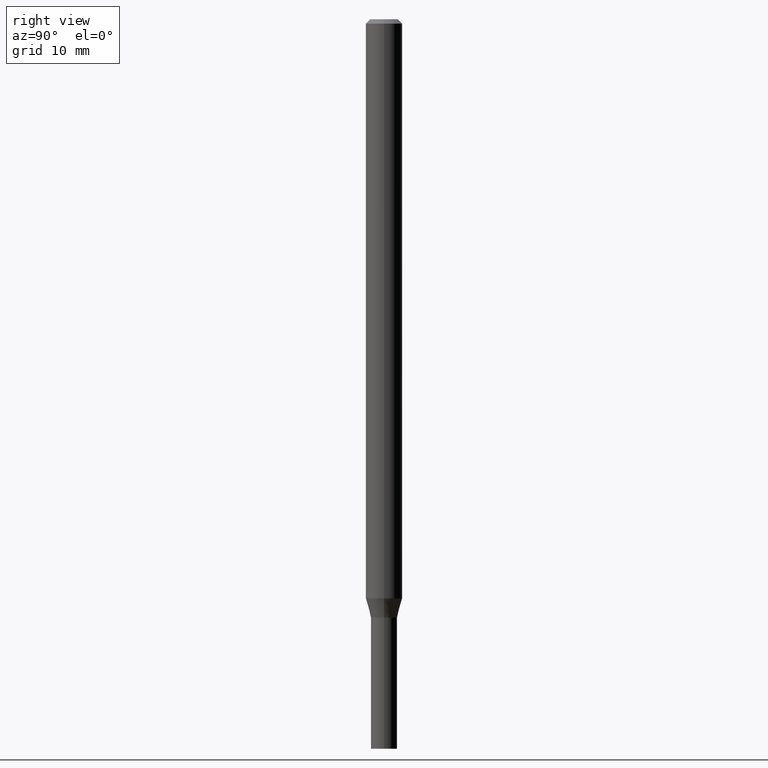
[diagram: clean part render]
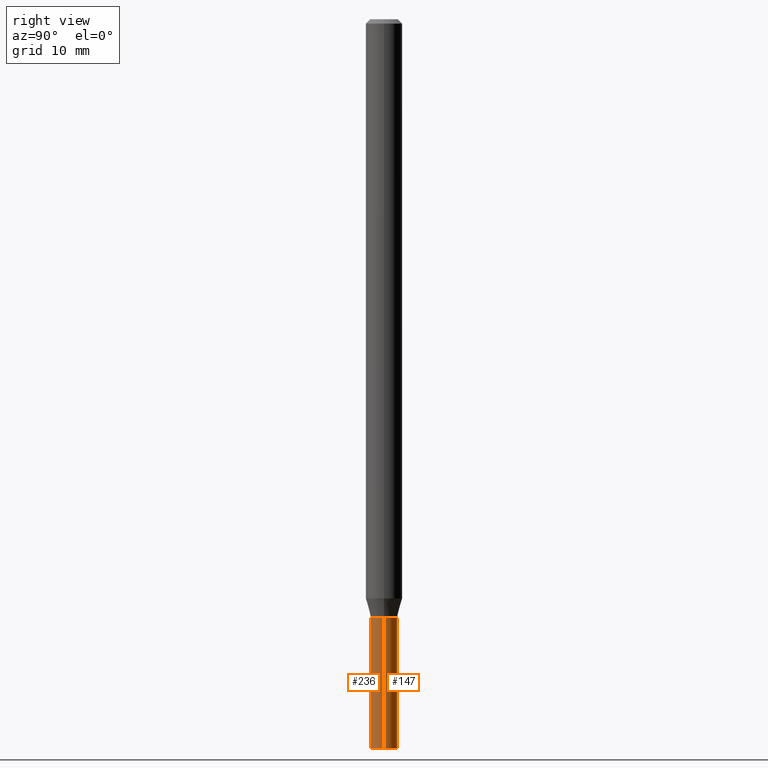
[diagram: same view with one multi-face feature highlighted, each face labeled with its STEP entity id]
A machine part, right view. The highlighted faces form ONE feature: a constant-radius fillet chain: 2 tangent blend faces with common blend radius 1.143 mm. The faces share edges in the B-rep.
Their STEP definitions:
[1] entity #147 (Cylinder):
#6 = CARTESIAN_POINT ( 'NONE',  ( 0.04499999999999999833, -3.142333204958819823E-16, 2.194279549108170967E-30 ) ) ;
#8 = CARTESIAN_POINT ( 'NONE',  ( -0.04499999999999999833, 3.197442310920450718E-16, -2.213520790614707560E-30 ) ) ;
#38 = DIRECTION ( 'NONE',  ( -2.445468806185136597E-29, 3.491481338843145583E-15, 1.000000000000000000 ) ) ;
#43 = DIRECTION ( 'NONE',  ( -2.445468806185136877E-29, 3.491481338843145188E-15, 1.000000000000000000 ) ) ;
#52 = EDGE_CURVE ( 'NONE', #274, #342, #275, .T. ) ;
#60 = EDGE_CURVE ( 'NONE', #135, #165, #343, .T. ) ;
#61 = AXIS2_PLACEMENT_3D ( 'NONE', #101, #139, #465 ) ;
#62 = VECTOR ( 'NONE', #43, 39.37007874015748143 ) ;
#81 = DIRECTION ( 'NONE',  ( 1.000000000000000000, -6.982962677686266711E-15, 4.876176775795935793E-29 ) ) ;
#98 = AXIS2_PLACEMENT_3D ( 'NONE', #112, #38, #81 ) ;
#101 = CARTESIAN_POINT ( 'NONE',  ( 6.113672015462842613E-29, -8.728703347107864943E-15, -2.500000000000000000 ) ) ;
#112 = CARTESIAN_POINT ( 'NONE',  ( 0.000000000000000000, 0.000000000000000000, 0.000000000000000000 ) ) ;
#135 = VERTEX_POINT ( 'NONE', #218 ) ;
#139 = DIRECTION ( 'NONE',  ( -2.445468806185136597E-29, 3.491481338843145583E-15, 1.000000000000000000 ) ) ;
#147 = ADVANCED_FACE ( 'NONE', ( #221 ), #290, .T. ) ;
#157 = LINE ( 'NONE', #8, #62 ) ;
#160 = LINE ( 'NONE', #6, #161 ) ;
#161 = VECTOR ( 'NONE', #302, 39.37007874015748143 ) ;
#165 = VERTEX_POINT ( 'NONE', #394 ) ;
#180 = ORIENTED_EDGE ( 'NONE', *, *, #418, .T. ) ;
#184 = AXIS2_PLACEMENT_3D ( 'NONE', #279, #319, #282 ) ;
#208 = ORIENTED_EDGE ( 'NONE', *, *, #217, .F. ) ;
#217 = EDGE_CURVE ( 'NONE', #274, #135, #160, .T. ) ;
#218 = CARTESIAN_POINT ( 'NONE',  ( 0.04499999999999999833, -7.471770065124331886E-15, -2.050000000000000266 ) ) ;
#221 = FACE_OUTER_BOUND ( 'NONE', #346, .T. ) ;
#274 = VERTEX_POINT ( 'NONE', #414 ) ;
#275 = CIRCLE ( 'NONE', #61, 0.04499999999999999833 ) ;
#279 = CARTESIAN_POINT ( 'NONE',  ( 5.013211052679530360E-29, -7.157536744628448622E-15, -2.050000000000000266 ) ) ;
#282 = DIRECTION ( 'NONE',  ( 1.000000000000000000, -6.982962677686269077E-15, 0.000000000000000000 ) ) ;
#290 = CYLINDRICAL_SURFACE ( 'NONE', #98, 0.04499999999999999833 ) ;
#297 = CARTESIAN_POINT ( 'NONE',  ( -0.04499999999999999833, -7.623375814776112203E-15, -2.500000000000000000 ) ) ;
#302 = DIRECTION ( 'NONE',  ( -2.445468806185136877E-29, 3.491481338843145188E-15, 1.000000000000000000 ) ) ;
#319 = DIRECTION ( 'NONE',  ( -2.445468806185136597E-29, 3.491481338843145583E-15, 1.000000000000000000 ) ) ;
#331 = ORIENTED_EDGE ( 'NONE', *, *, #52, .T. ) ;
#342 = VERTEX_POINT ( 'NONE', #297 ) ;
#343 = CIRCLE ( 'NONE', #184, 0.04499999999999999833 ) ;
#346 = EDGE_LOOP ( 'NONE', ( #331, #180, #426, #208 ) ) ;
#394 = CARTESIAN_POINT ( 'NONE',  ( -0.04499999999999999833, -7.623375814776112203E-15, -2.050000000000000266 ) ) ;
#414 = CARTESIAN_POINT ( 'NONE',  ( 0.04499999999999999833, -9.042936667603745051E-15, -2.500000000000000000 ) ) ;
#418 = EDGE_CURVE ( 'NONE', #342, #165, #157, .T. ) ;
#426 = ORIENTED_EDGE ( 'NONE', *, *, #60, .F. ) ;
#465 = DIRECTION ( 'NONE',  ( 1.000000000000000000, -6.982962677686246989E-15, 0.000000000000000000 ) ) ;
[2] entity #236 (Cylinder):
#6 = CARTESIAN_POINT ( 'NONE',  ( 0.04499999999999999833, -3.142333204958819823E-16, 2.194279549108170967E-30 ) ) ;
#8 = CARTESIAN_POINT ( 'NONE',  ( -0.04499999999999999833, 3.197442310920450718E-16, -2.213520790614707560E-30 ) ) ;
#32 = CIRCLE ( 'NONE', #293, 0.04499999999999999833 ) ;
#43 = DIRECTION ( 'NONE',  ( -2.445468806185136877E-29, 3.491481338843145188E-15, 1.000000000000000000 ) ) ;
#62 = VECTOR ( 'NONE', #43, 39.37007874015748143 ) ;
#83 = DIRECTION ( 'NONE',  ( 1.000000000000000000, -6.982962677686269077E-15, 0.000000000000000000 ) ) ;
#90 = EDGE_LOOP ( 'NONE', ( #162, #122, #457, #266 ) ) ;
#94 = EDGE_CURVE ( 'NONE', #342, #274, #251, .T. ) ;
#103 = DIRECTION ( 'NONE',  ( -2.445468806185136597E-29, 3.491481338843145583E-15, 1.000000000000000000 ) ) ;
#115 = DIRECTION ( 'NONE',  ( 1.000000000000000000, -6.982962677686266711E-15, 4.876176775795935793E-29 ) ) ;
#118 = CYLINDRICAL_SURFACE ( 'NONE', #193, 0.04499999999999999833 ) ;
#122 = ORIENTED_EDGE ( 'NONE', *, *, #94, .T. ) ;
#135 = VERTEX_POINT ( 'NONE', #218 ) ;
#151 = CARTESIAN_POINT ( 'NONE',  ( 0.000000000000000000, 0.000000000000000000, 0.000000000000000000 ) ) ;
#157 = LINE ( 'NONE', #8, #62 ) ;
#160 = LINE ( 'NONE', #6, #161 ) ;
#161 = VECTOR ( 'NONE', #302, 39.37007874015748143 ) ;
#162 = ORIENTED_EDGE ( 'NONE', *, *, #418, .F. ) ;
#165 = VERTEX_POINT ( 'NONE', #394 ) ;
#193 = AXIS2_PLACEMENT_3D ( 'NONE', #151, #405, #115 ) ;
#217 = EDGE_CURVE ( 'NONE', #274, #135, #160, .T. ) ;
#218 = CARTESIAN_POINT ( 'NONE',  ( 0.04499999999999999833, -7.471770065124331886E-15, -2.050000000000000266 ) ) ;
#236 = ADVANCED_FACE ( 'NONE', ( #434 ), #118, .T. ) ;
#251 = CIRCLE ( 'NONE', #410, 0.04499999999999999833 ) ;
#257 = EDGE_CURVE ( 'NONE', #165, #135, #32, .T. ) ;
#258 = CARTESIAN_POINT ( 'NONE',  ( 5.013211052679530360E-29, -7.157536744628448622E-15, -2.050000000000000266 ) ) ;
#266 = ORIENTED_EDGE ( 'NONE', *, *, #257, .F. ) ;
#274 = VERTEX_POINT ( 'NONE', #414 ) ;
#286 = DIRECTION ( 'NONE',  ( 1.000000000000000000, -6.982962677686246989E-15, 0.000000000000000000 ) ) ;
#293 = AXIS2_PLACEMENT_3D ( 'NONE', #258, #402, #83 ) ;
#297 = CARTESIAN_POINT ( 'NONE',  ( -0.04499999999999999833, -7.623375814776112203E-15, -2.500000000000000000 ) ) ;
#302 = DIRECTION ( 'NONE',  ( -2.445468806185136877E-29, 3.491481338843145188E-15, 1.000000000000000000 ) ) ;
#342 = VERTEX_POINT ( 'NONE', #297 ) ;
#394 = CARTESIAN_POINT ( 'NONE',  ( -0.04499999999999999833, -7.623375814776112203E-15, -2.050000000000000266 ) ) ;
#402 = DIRECTION ( 'NONE',  ( -2.445468806185136597E-29, 3.491481338843145583E-15, 1.000000000000000000 ) ) ;
#405 = DIRECTION ( 'NONE',  ( -2.445468806185136597E-29, 3.491481338843145583E-15, 1.000000000000000000 ) ) ;
#410 = AXIS2_PLACEMENT_3D ( 'NONE', #424, #103, #286 ) ;
#414 = CARTESIAN_POINT ( 'NONE',  ( 0.04499999999999999833, -9.042936667603745051E-15, -2.500000000000000000 ) ) ;
#418 = EDGE_CURVE ( 'NONE', #342, #165, #157, .T. ) ;
#424 = CARTESIAN_POINT ( 'NONE',  ( 6.113672015462842613E-29, -8.728703347107864943E-15, -2.500000000000000000 ) ) ;
#434 = FACE_OUTER_BOUND ( 'NONE', #90, .T. ) ;
#457 = ORIENTED_EDGE ( 'NONE', *, *, #217, .T. ) ;